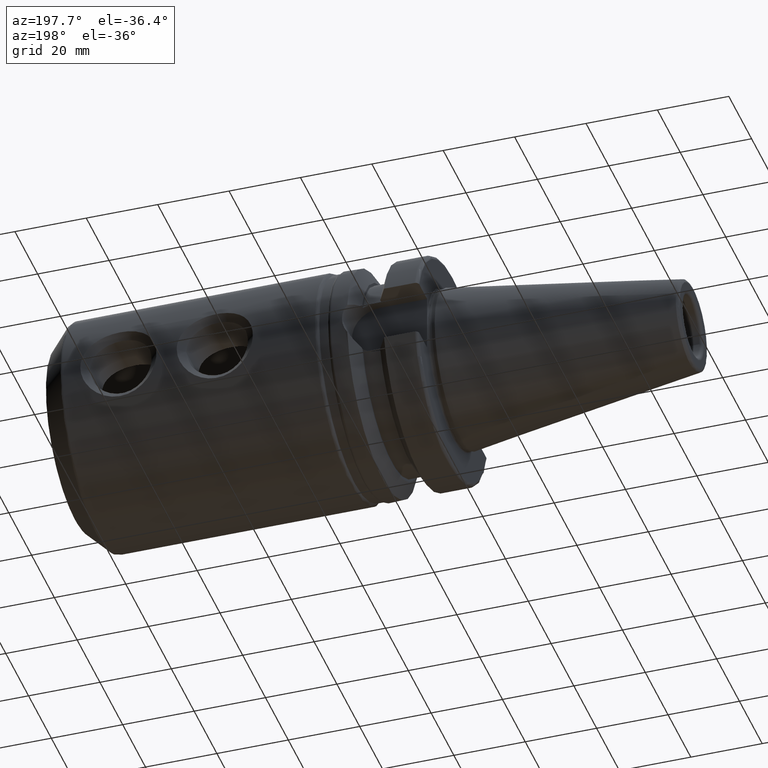
[diagram: clean part render]
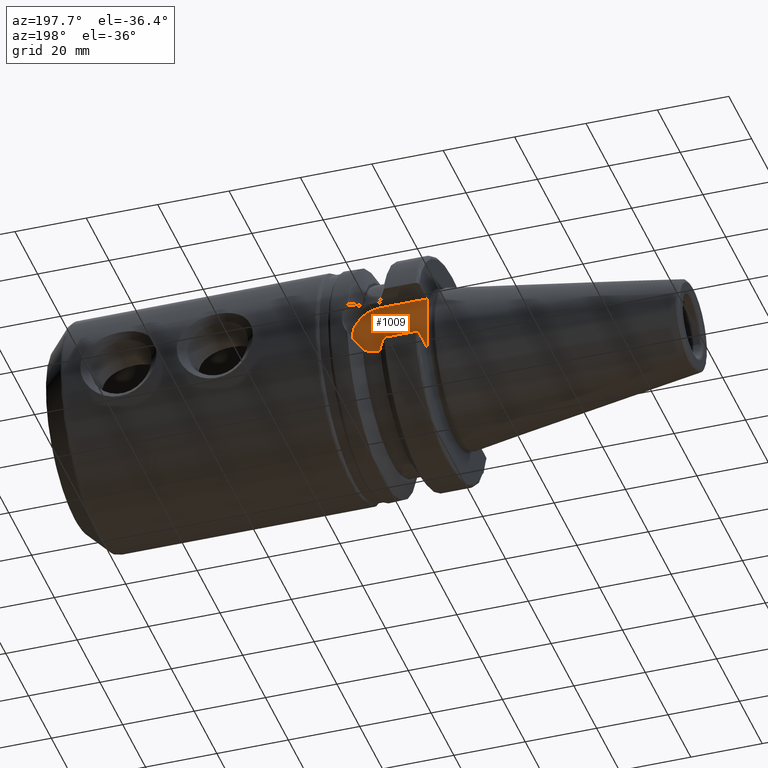
[diagram: same view with one face highlighted and labeled with its STEP entity id]
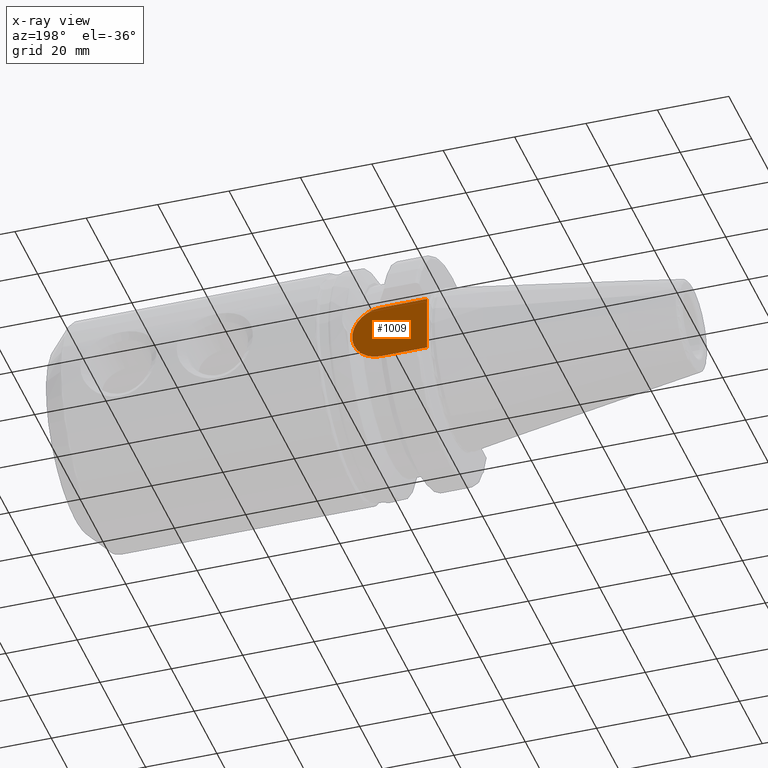
[diagram: x-ray of the same camera — body ghosted, the highlighted face saturated]
A machine part, auxiliary view. The second image highlights one B-rep face of the part: STEP entity #1009.
The next image is the same camera in x-ray: the body ghosted, the highlighted face saturated — about 0% of this face is hidden behind the body in this view.
In plain terms, the highlighted planar face has unit normal (0, 1, 0).
Its self-contained STEP definition (entity closure, byte-faithful):
#103=LINE('',#2311,#157);
#108=LINE('',#2335,#162);
#109=LINE('',#2337,#163);
#157=VECTOR('',#1368,10.);
#162=VECTOR('',#1375,10.);
#163=VECTOR('',#1378,10.);
#208=PLANE('',#1129);
#252=FACE_OUTER_BOUND('',#317,.T.);
#317=EDGE_LOOP('',(#872,#873,#874,#875));
#380=CIRCLE('',#1126,8.05);
#479=VERTEX_POINT('',#2286);
#480=VERTEX_POINT('',#2288);
#485=VERTEX_POINT('',#2310);
#490=VERTEX_POINT('',#2333);
#612=EDGE_CURVE('',#480,#479,#380,.T.);
#618=EDGE_CURVE('',#485,#480,#103,.T.);
#625=EDGE_CURVE('',#479,#490,#108,.T.);
#626=EDGE_CURVE('',#485,#490,#109,.T.);
#872=ORIENTED_EDGE('',*,*,#625,.T.);
#873=ORIENTED_EDGE('',*,*,#626,.F.);
#874=ORIENTED_EDGE('',*,*,#618,.T.);
#875=ORIENTED_EDGE('',*,*,#612,.T.);
#1009=ADVANCED_FACE('',(#252),#208,.T.);
#1126=AXIS2_PLACEMENT_3D('',#2289,#1361,#1362);
#1129=AXIS2_PLACEMENT_3D('',#2336,#1376,#1377);
#1361=DIRECTION('center_axis',(0.,1.,0.));
#1362=DIRECTION('ref_axis',(0.,0.,1.));
#1368=DIRECTION('',(1.,0.,8.57315076930623E-17));
#1375=DIRECTION('',(-1.,0.,-8.57315076930623E-17));
#1376=DIRECTION('center_axis',(0.,1.,0.));
#1377=DIRECTION('ref_axis',(0.,0.,1.));
#1378=DIRECTION('',(0.,0.,-1.));
#2286=CARTESIAN_POINT('',(14.95,22.6,-8.05));
#2288=CARTESIAN_POINT('',(14.95,22.6,8.05));
#2289=CARTESIAN_POINT('Origin',(14.95,22.6,0.));
#2310=CARTESIAN_POINT('',(1.99999999999999,22.6,8.05));
#2311=CARTESIAN_POINT('',(1.99999999999999,22.6,8.05));
#2333=CARTESIAN_POINT('',(1.99999999999999,22.6,-8.05));
#2335=CARTESIAN_POINT('',(14.95,22.6,-8.05));
#2336=CARTESIAN_POINT('Origin',(12.5,22.6,0.));
#2337=CARTESIAN_POINT('',(1.99999999999999,22.6,0.));